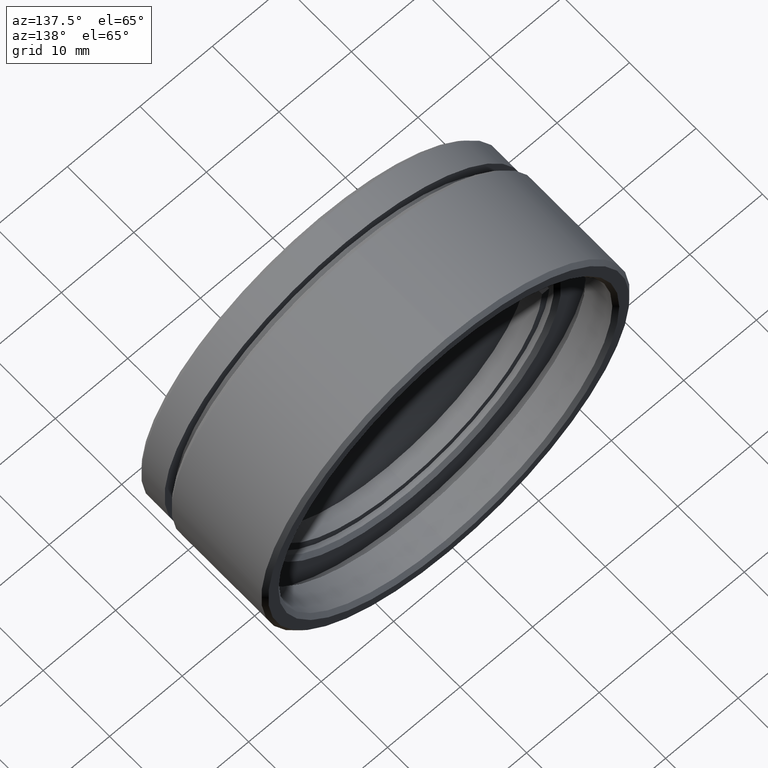
[diagram: clean part render]
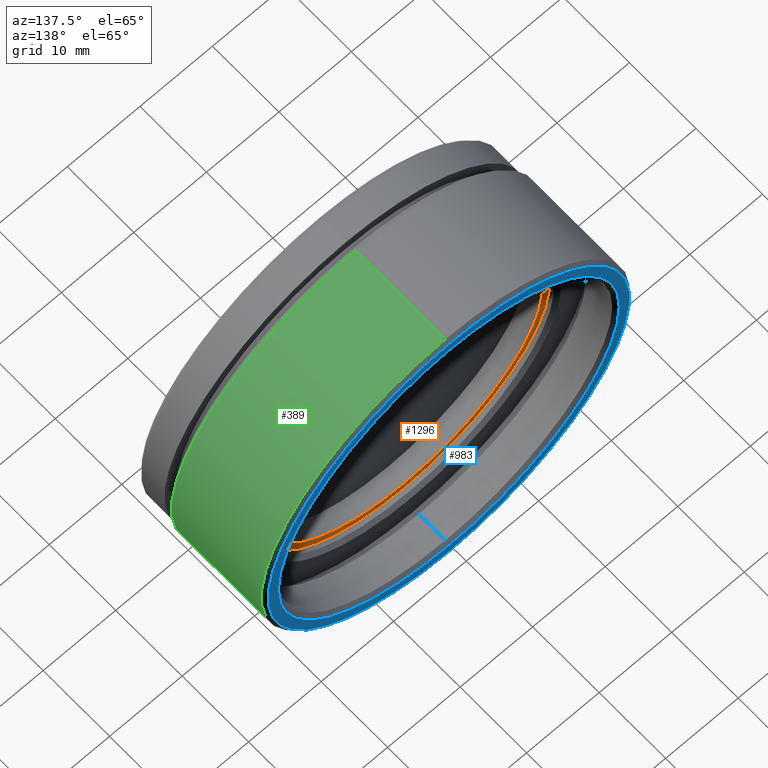
[diagram: same view with three faces highlighted in distinct colors, each labeled with its STEP entity id]
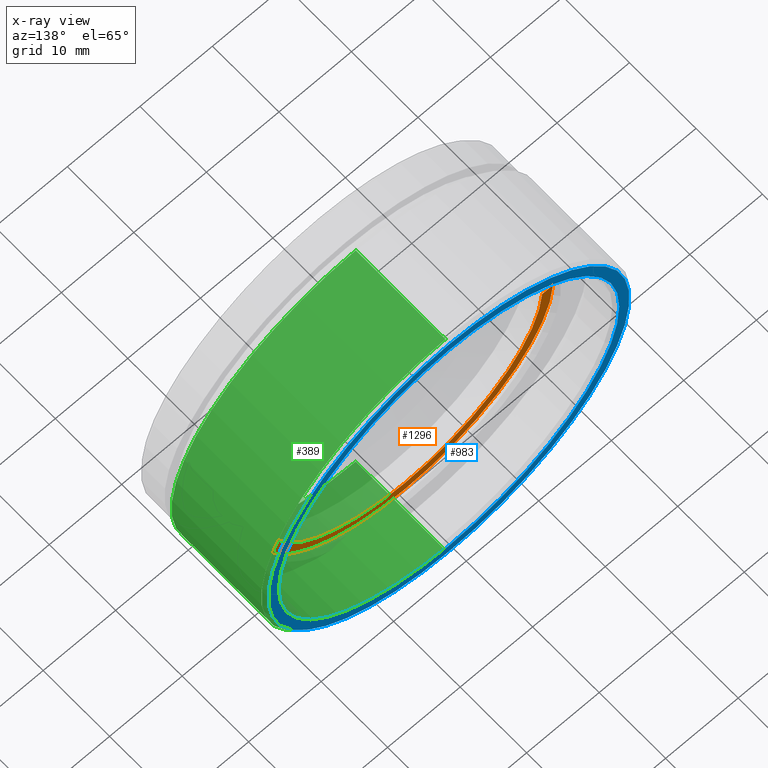
[diagram: x-ray of the same camera — body ghosted, the three highlighted faces saturated]
A machine part, auxiliary view with three faces highlighted in distinct colors.
The next image is the same camera in x-ray (body ghosted, the three faces saturated) — at least one of them is partly hidden behind the body in this view.
Their STEP definitions:

[orange] entity #1296 — the highlighted planar face has unit normal (0, -1, 0).
#8 = VECTOR ( 'NONE', #1369, 1000.000000000000000 ) ;
#53 = VERTEX_POINT ( 'NONE', #837 ) ;
#87 = EDGE_CURVE ( 'NONE', #269, #435, #864, .T. ) ;
#96 = EDGE_LOOP ( 'NONE', ( #1276, #189, #543, #787, #733, #203 ) ) ;
#107 = CARTESIAN_POINT ( 'NONE',  ( -8.905217641199669742, -8.080281845166151555, 26.65036394347453097 ) ) ;
#156 = VECTOR ( 'NONE', #1118, 1000.000000000000000 ) ;
#159 = CARTESIAN_POINT ( 'NONE',  ( -8.905217641199669742, -8.080281845166151555, 26.65036394347453097 ) ) ;
#174 = LINE ( 'NONE', #1247, #8 ) ;
#189 = ORIENTED_EDGE ( 'NONE', *, *, #738, .T. ) ;
#192 = CARTESIAN_POINT ( 'NONE',  ( -27.87888360220997086, -8.080281845166151555, 25.65036394347453097 ) ) ;
#203 = ORIENTED_EDGE ( 'NONE', *, *, #87, .F. ) ;
#269 = VERTEX_POINT ( 'NONE', #1170 ) ;
#320 = CARTESIAN_POINT ( 'NONE',  ( -35.75775791381426671, -8.080281845166156884, 25.65036394347453097 ) ) ;
#360 = PLANE ( 'NONE',  #1124 ) ;
#398 = DIRECTION ( 'NONE',  ( 0.000000000000000000, 1.000000000000000000, 0.000000000000000000 ) ) ;
#405 = DIRECTION ( 'NONE',  ( 0.000000000000000000, 0.000000000000000000, 1.000000000000000000 ) ) ;
#435 = VERTEX_POINT ( 'NONE', #1711 ) ;
#453 = AXIS2_PLACEMENT_3D ( 'NONE', #561, #989, #706 ) ;
#475 = EDGE_CURVE ( 'NONE', #53, #1175, #599, .T. ) ;
#543 = ORIENTED_EDGE ( 'NONE', *, *, #1126, .F. ) ;
#561 = CARTESIAN_POINT ( 'NONE',  ( -8.905217641199669742, -8.080281845166151555, 26.65036394347453097 ) ) ;
#599 = CIRCLE ( 'NONE', #453, 19.00000000000000355 ) ;
#706 = DIRECTION ( 'NONE',  ( 0.000000000000000000, 0.000000000000000000, 1.000000000000000000 ) ) ;
#733 = ORIENTED_EDGE ( 'NONE', *, *, #1687, .F. ) ;
#738 = EDGE_CURVE ( 'NONE', #1469, #1231, #871, .T. ) ;
#743 = AXIS2_PLACEMENT_3D ( 'NONE', #159, #398, #405 ) ;
#787 = ORIENTED_EDGE ( 'NONE', *, *, #475, .F. ) ;
#837 = CARTESIAN_POINT ( 'NONE',  ( -8.905217641199667966, -8.080281845166151555, 7.650363943474531858 ) ) ;
#853 = CIRCLE ( 'NONE', #743, 19.00000000000000355 ) ;
#864 = LINE ( 'NONE', #320, #156 ) ;
#871 = CIRCLE ( 'NONE', #1586, 20.50000000000000355 ) ;
#875 = DIRECTION ( 'NONE',  ( 0.000000000000000000, 0.000000000000000000, 1.000000000000000000 ) ) ;
#989 = DIRECTION ( 'NONE',  ( 0.000000000000000000, 1.000000000000000000, 0.000000000000000000 ) ) ;
#1048 = CIRCLE ( 'NONE', #1290, 20.50000000000000355 ) ;
#1118 = DIRECTION ( 'NONE',  ( -1.000000000000000000, 0.000000000000000000, 0.000000000000000000 ) ) ;
#1124 = AXIS2_PLACEMENT_3D ( 'NONE', #1153, #1139, #1567 ) ;
#1126 = EDGE_CURVE ( 'NONE', #1175, #1231, #174, .T. ) ;
#1139 = DIRECTION ( 'NONE',  ( 0.000000000000000000, -1.000000000000000000, 0.000000000000000000 ) ) ;
#1153 = CARTESIAN_POINT ( 'NONE',  ( 10.09478235880033026, -8.080281845166156884, 26.65036394347453097 ) ) ;
#1167 = FACE_OUTER_BOUND ( 'NONE', #96, .T. ) ;
#1170 = CARTESIAN_POINT ( 'NONE',  ( 11.57037758824357887, -8.080281845166156884, 25.65036394347453097 ) ) ;
#1175 = VERTEX_POINT ( 'NONE', #192 ) ;
#1231 = VERTEX_POINT ( 'NONE', #1279 ) ;
#1247 = CARTESIAN_POINT ( 'NONE',  ( -35.75775791381426671, -8.080281845166156884, 25.65036394347453097 ) ) ;
#1271 = CARTESIAN_POINT ( 'NONE',  ( -8.905217641199667966, -8.080281845166151555, 6.150363943474530082 ) ) ;
#1274 = EDGE_CURVE ( 'NONE', #269, #1469, #1048, .T. ) ;
#1276 = ORIENTED_EDGE ( 'NONE', *, *, #1274, .T. ) ;
#1279 = CARTESIAN_POINT ( 'NONE',  ( -29.38081287064296987, -8.080281845166156884, 25.65036394347453097 ) ) ;
#1290 = AXIS2_PLACEMENT_3D ( 'NONE', #107, #1552, #1426 ) ;
#1296 = ADVANCED_FACE ( 'NONE', ( #1167 ), #360, .F. ) ;
#1369 = DIRECTION ( 'NONE',  ( -1.000000000000000000, 0.000000000000000000, 0.000000000000000000 ) ) ;
#1426 = DIRECTION ( 'NONE',  ( 0.000000000000000000, 0.000000000000000000, 1.000000000000000000 ) ) ;
#1469 = VERTEX_POINT ( 'NONE', #1271 ) ;
#1493 = DIRECTION ( 'NONE',  ( 0.000000000000000000, 1.000000000000000000, 0.000000000000000000 ) ) ;
#1501 = CARTESIAN_POINT ( 'NONE',  ( -8.905217641199669742, -8.080281845166151555, 26.65036394347453097 ) ) ;
#1552 = DIRECTION ( 'NONE',  ( 0.000000000000000000, 1.000000000000000000, 0.000000000000000000 ) ) ;
#1567 = DIRECTION ( 'NONE',  ( 0.000000000000000000, 0.000000000000000000, -1.000000000000000000 ) ) ;
#1586 = AXIS2_PLACEMENT_3D ( 'NONE', #1501, #1493, #875 ) ;
#1687 = EDGE_CURVE ( 'NONE', #435, #53, #853, .T. ) ;
#1711 = CARTESIAN_POINT ( 'NONE',  ( 10.06844831981062960, -8.080281845166151555, 25.65036394347453097 ) ) ;

[blue] entity #983 — the highlighted planar face has unit normal (-0, 1, 0).
#2 = EDGE_LOOP ( 'NONE', ( #669, #1387 ) ) ;
#15 = CARTESIAN_POINT ( 'NONE',  ( 14.09478235880033381, -1.418806130578251334, 26.65036394347453097 ) ) ;
#90 = CARTESIAN_POINT ( 'NONE',  ( -8.905217641199666190, -1.418806130578251334, 1.750363943474532391 ) ) ;
#98 = CIRCLE ( 'NONE', #508, 24.89999999999999858 ) ;
#141 = CARTESIAN_POINT ( 'NONE',  ( -8.905217641199666190, -1.418806130578251334, 26.65036394347453097 ) ) ;
#151 = PLANE ( 'NONE',  #1115 ) ;
#332 = EDGE_CURVE ( 'NONE', #1591, #950, #1269, .T. ) ;
#393 = DIRECTION ( 'NONE',  ( 0.000000000000000000, 0.000000000000000000, 1.000000000000000000 ) ) ;
#426 = ORIENTED_EDGE ( 'NONE', *, *, #332, .T. ) ;
#447 = EDGE_LOOP ( 'NONE', ( #426, #805 ) ) ;
#508 = AXIS2_PLACEMENT_3D ( 'NONE', #141, #1205, #1471 ) ;
#526 = CIRCLE ( 'NONE', #760, 23.50000000000000000 ) ;
#530 = CARTESIAN_POINT ( 'NONE',  ( -8.905217641199662637, -1.418806130578251334, 3.150363943474530970 ) ) ;
#666 = DIRECTION ( 'NONE',  ( 0.000000000000000000, -1.000000000000000000, 0.000000000000000000 ) ) ;
#669 = ORIENTED_EDGE ( 'NONE', *, *, #1631, .F. ) ;
#674 = DIRECTION ( 'NONE',  ( -0.000000000000000000, 1.000000000000000000, 0.000000000000000000 ) ) ;
#760 = AXIS2_PLACEMENT_3D ( 'NONE', #1056, #666, #393 ) ;
#783 = CARTESIAN_POINT ( 'NONE',  ( -8.905217641199662637, -1.418806130578251334, 51.55036394347452955 ) ) ;
#792 = CARTESIAN_POINT ( 'NONE',  ( -8.905217641199666190, -1.418806130578251334, 26.65036394347453097 ) ) ;
#805 = ORIENTED_EDGE ( 'NONE', *, *, #970, .T. ) ;
#911 = VERTEX_POINT ( 'NONE', #783 ) ;
#928 = DIRECTION ( 'NONE',  ( 0.000000000000000000, -1.000000000000000000, 0.000000000000000000 ) ) ;
#950 = VERTEX_POINT ( 'NONE', #530 ) ;
#958 = DIRECTION ( 'NONE',  ( 0.000000000000000000, -1.000000000000000000, 0.000000000000000000 ) ) ;
#970 = EDGE_CURVE ( 'NONE', #950, #1591, #526, .T. ) ;
#983 = ADVANCED_FACE ( 'NONE', ( #1602, #1325 ), #151, .T. ) ;
#1056 = CARTESIAN_POINT ( 'NONE',  ( -8.905217641199666190, -1.418806130578251334, 26.65036394347453097 ) ) ;
#1060 = CARTESIAN_POINT ( 'NONE',  ( -8.905217641199666190, -1.418806130578251334, 26.65036394347453097 ) ) ;
#1115 = AXIS2_PLACEMENT_3D ( 'NONE', #15, #674, #1216 ) ;
#1205 = DIRECTION ( 'NONE',  ( 0.000000000000000000, -1.000000000000000000, 0.000000000000000000 ) ) ;
#1216 = DIRECTION ( 'NONE',  ( 1.000000000000000000, 0.000000000000000000, 0.000000000000000000 ) ) ;
#1269 = CIRCLE ( 'NONE', #1627, 23.50000000000000000 ) ;
#1293 = VERTEX_POINT ( 'NONE', #90 ) ;
#1319 = CIRCLE ( 'NONE', #1347, 24.89999999999999858 ) ;
#1324 = DIRECTION ( 'NONE',  ( 0.000000000000000000, 0.000000000000000000, 1.000000000000000000 ) ) ;
#1325 = FACE_BOUND ( 'NONE', #447, .T. ) ;
#1341 = DIRECTION ( 'NONE',  ( 0.000000000000000000, 0.000000000000000000, -1.000000000000000000 ) ) ;
#1347 = AXIS2_PLACEMENT_3D ( 'NONE', #1060, #928, #1341 ) ;
#1387 = ORIENTED_EDGE ( 'NONE', *, *, #1696, .F. ) ;
#1446 = CARTESIAN_POINT ( 'NONE',  ( -8.905217641199666190, -1.418806130578251334, 50.15036394347453097 ) ) ;
#1471 = DIRECTION ( 'NONE',  ( 0.000000000000000000, 0.000000000000000000, -1.000000000000000000 ) ) ;
#1591 = VERTEX_POINT ( 'NONE', #1446 ) ;
#1602 = FACE_OUTER_BOUND ( 'NONE', #2, .T. ) ;
#1627 = AXIS2_PLACEMENT_3D ( 'NONE', #792, #958, #1324 ) ;
#1631 = EDGE_CURVE ( 'NONE', #1293, #911, #1319, .T. ) ;
#1696 = EDGE_CURVE ( 'NONE', #911, #1293, #98, .T. ) ;

[green] entity #389 — the highlighted cylindrical surface (partial cylindrical patch) has radius 25.4 mm, axis along (0, -1, 0).
#13 = CARTESIAN_POINT ( 'NONE',  ( -8.905217641199666190, -15.41880613057825222, 26.65036394347453097 ) ) ;
#14 = CARTESIAN_POINT ( 'NONE',  ( -8.905217641199666190, -20.91880613057825045, 26.65036394347453097 ) ) ;
#43 = EDGE_LOOP ( 'NONE', ( #1047, #1513, #1391, #848 ) ) ;
#55 = LINE ( 'NONE', #1234, #1596 ) ;
#142 = CARTESIAN_POINT ( 'NONE',  ( -8.905217641199666190, -1.918806130578251778, 26.65036394347453097 ) ) ;
#254 = DIRECTION ( 'NONE',  ( 0.000000000000000000, -1.000000000000000000, 0.000000000000000000 ) ) ;
#255 = DIRECTION ( 'NONE',  ( 0.000000000000000000, -1.000000000000000000, 0.000000000000000000 ) ) ;
#351 = EDGE_CURVE ( 'NONE', #948, #866, #1523, .T. ) ;
#389 = ADVANCED_FACE ( 'NONE', ( #945 ), #546, .T. ) ;
#499 = VECTOR ( 'NONE', #1609, 1000.000000000000000 ) ;
#518 = DIRECTION ( 'NONE',  ( 0.000000000000000000, 0.000000000000000000, -1.000000000000000000 ) ) ;
#524 = EDGE_CURVE ( 'NONE', #948, #1217, #55, .T. ) ;
#545 = DIRECTION ( 'NONE',  ( 0.000000000000000000, 0.000000000000000000, -1.000000000000000000 ) ) ;
#546 = CYLINDRICAL_SURFACE ( 'NONE', #752, 25.39999999999999858 ) ;
#752 = AXIS2_PLACEMENT_3D ( 'NONE', #14, #1464, #937 ) ;
#848 = ORIENTED_EDGE ( 'NONE', *, *, #524, .F. ) ;
#866 = VERTEX_POINT ( 'NONE', #1415 ) ;
#891 = AXIS2_PLACEMENT_3D ( 'NONE', #142, #255, #518 ) ;
#934 = CIRCLE ( 'NONE', #1184, 25.39999999999999858 ) ;
#937 = DIRECTION ( 'NONE',  ( 0.000000000000000000, 0.000000000000000000, -1.000000000000000000 ) ) ;
#945 = FACE_OUTER_BOUND ( 'NONE', #43, .T. ) ;
#947 = EDGE_CURVE ( 'NONE', #866, #1374, #1540, .T. ) ;
#948 = VERTEX_POINT ( 'NONE', #1316 ) ;
#1047 = ORIENTED_EDGE ( 'NONE', *, *, #351, .T. ) ;
#1098 = DIRECTION ( 'NONE',  ( 0.000000000000000000, -1.000000000000000000, 0.000000000000000000 ) ) ;
#1161 = CARTESIAN_POINT ( 'NONE',  ( -8.905217641199662637, -15.41880613057825222, 1.250363943474531947 ) ) ;
#1184 = AXIS2_PLACEMENT_3D ( 'NONE', #13, #254, #545 ) ;
#1217 = VERTEX_POINT ( 'NONE', #1161 ) ;
#1234 = CARTESIAN_POINT ( 'NONE',  ( -8.905217641199666190, -20.91880613057825045, 1.250363943474531947 ) ) ;
#1316 = CARTESIAN_POINT ( 'NONE',  ( -8.905217641199666190, -1.918806130578251778, 1.250363943474531947 ) ) ;
#1374 = VERTEX_POINT ( 'NONE', #1598 ) ;
#1391 = ORIENTED_EDGE ( 'NONE', *, *, #1614, .F. ) ;
#1409 = CARTESIAN_POINT ( 'NONE',  ( -8.905217641199662637, -20.91880613057825045, 52.05036394347452955 ) ) ;
#1415 = CARTESIAN_POINT ( 'NONE',  ( -8.905217641199662637, -1.918806130578251778, 52.05036394347452955 ) ) ;
#1464 = DIRECTION ( 'NONE',  ( 0.000000000000000000, -1.000000000000000000, 0.000000000000000000 ) ) ;
#1513 = ORIENTED_EDGE ( 'NONE', *, *, #947, .T. ) ;
#1523 = CIRCLE ( 'NONE', #891, 25.39999999999999858 ) ;
#1540 = LINE ( 'NONE', #1409, #499 ) ;
#1596 = VECTOR ( 'NONE', #1098, 1000.000000000000000 ) ;
#1598 = CARTESIAN_POINT ( 'NONE',  ( -8.905217641199666190, -15.41880613057825222, 52.05036394347452955 ) ) ;
#1609 = DIRECTION ( 'NONE',  ( 0.000000000000000000, -1.000000000000000000, 0.000000000000000000 ) ) ;
#1614 = EDGE_CURVE ( 'NONE', #1217, #1374, #934, .T. ) ;